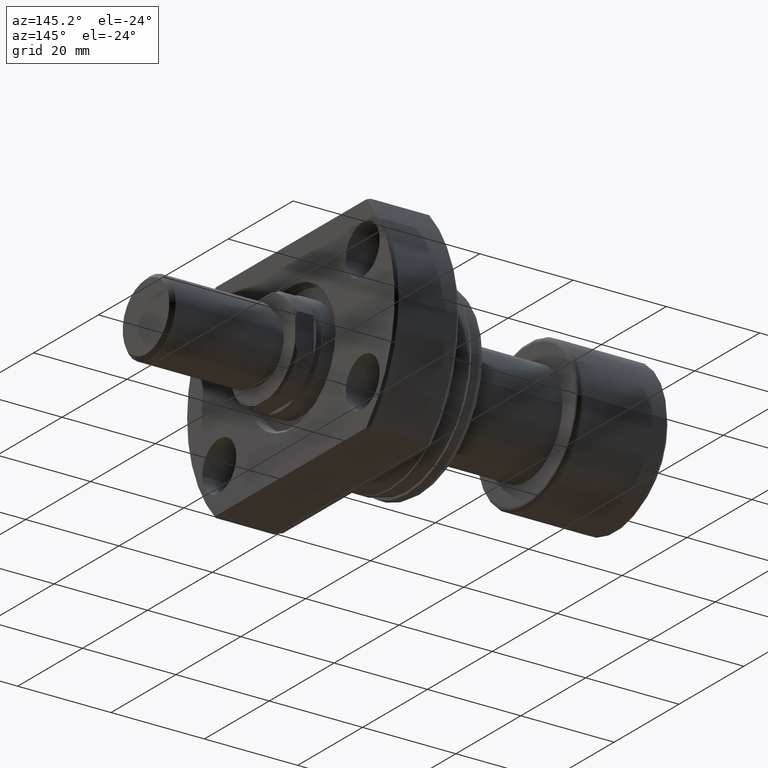
[diagram: clean part render]
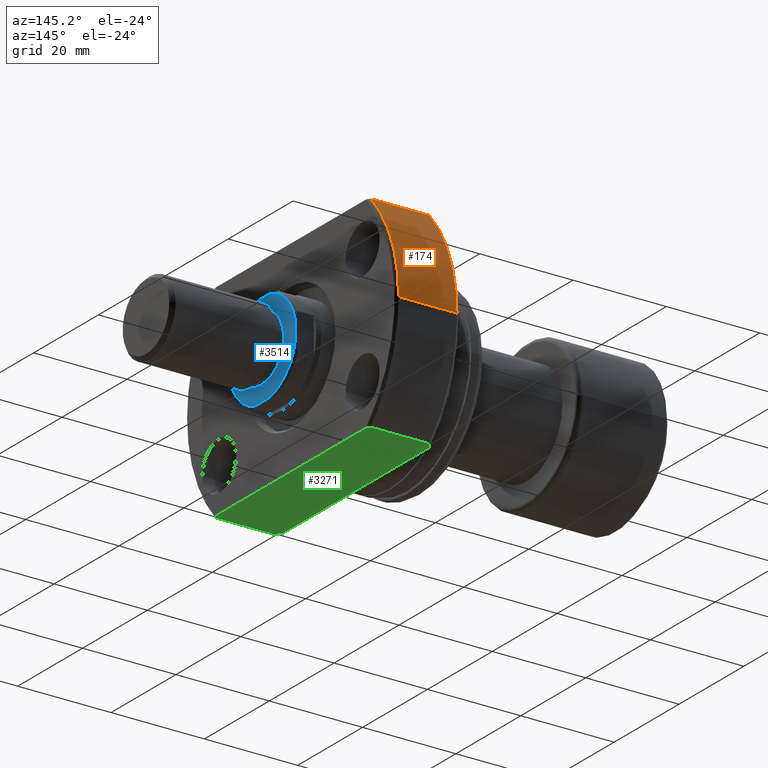
[diagram: same view with three faces highlighted in distinct colors, each labeled with its STEP entity id]
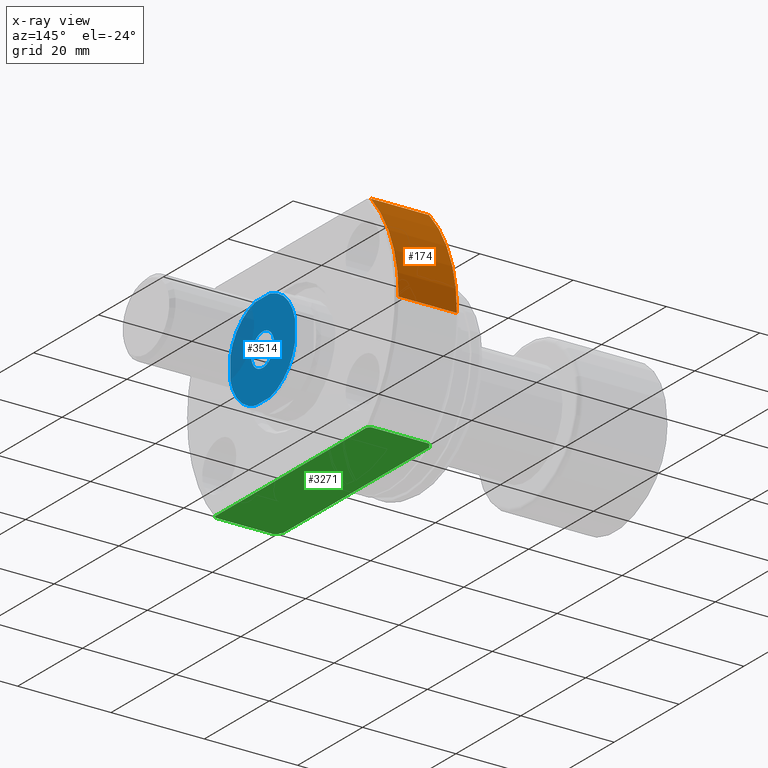
[diagram: x-ray of the same camera — body ghosted, the three highlighted faces saturated]
A machine part, auxiliary view with three faces highlighted in distinct colors.
The next image is the same camera in x-ray (body ghosted, the three faces saturated) — at least one of them is partly hidden behind the body in this view.
Their STEP definitions:

[orange] entity #174 — the highlighted cylindrical surface (partial cylindrical patch) has radius 32.5 mm, axis along (1, 0, 0).
#11 = VERTEX_POINT ( 'NONE', #2381 ) ;
#64 = EDGE_CURVE ( 'NONE', #11, #302, #3046, .T. ) ;
#162 = DIRECTION ( 'NONE',  ( 1.000000000000000000, 1.335978326342566810E-17, -0.000000000000000000 ) ) ;
#174 = ADVANCED_FACE ( 'NONE', ( #2740 ), #2186, .T. ) ;
#266 = ORIENTED_EDGE ( 'NONE', *, *, #64, .F. ) ;
#302 = VERTEX_POINT ( 'NONE', #1369 ) ;
#497 = CIRCLE ( 'NONE', #3351, 32.49999999999991473 ) ;
#707 = EDGE_CURVE ( 'NONE', #3194, #2089, #497, .T. ) ;
#713 = EDGE_LOOP ( 'NONE', ( #3176, #3032, #2932, #266 ) ) ;
#747 = CARTESIAN_POINT ( 'NONE',  ( 14.49999999999999289, 23.92174742781164198, 22.00000000000000000 ) ) ;
#792 = AXIS2_PLACEMENT_3D ( 'NONE', #1569, #2724, #1012 ) ;
#863 = EDGE_CURVE ( 'NONE', #2089, #302, #2777, .T. ) ;
#982 = VECTOR ( 'NONE', #3369, 1000.000000000000000 ) ;
#1012 = DIRECTION ( 'NONE',  ( 0.000000000000000000, 1.000000000000000000, 0.000000000000000000 ) ) ;
#1278 = VECTOR ( 'NONE', #3541, 1000.000000000000000 ) ;
#1298 = CARTESIAN_POINT ( 'NONE',  ( 14.49999999999999289, 32.49999999999991473, 0.000000000000000000 ) ) ;
#1308 = DIRECTION ( 'NONE',  ( 0.000000000000000000, 1.000000000000000000, 0.000000000000000000 ) ) ;
#1369 = CARTESIAN_POINT ( 'NONE',  ( 27.00000000000007105, 23.92174742781127961, 22.00000000000000000 ) ) ;
#1541 = DIRECTION ( 'NONE',  ( 1.000000000000000000, 1.335978326342566810E-17, -0.000000000000000000 ) ) ;
#1569 = CARTESIAN_POINT ( 'NONE',  ( 27.50000000000000355, 3.673940397442059375E-16, 0.000000000000000000 ) ) ;
#1763 = CARTESIAN_POINT ( 'NONE',  ( 27.00000000000008527, 3.607141481124941789E-16, 0.000000000000000000 ) ) ;
#1831 = LINE ( 'NONE', #2966, #1278 ) ;
#2028 = EDGE_CURVE ( 'NONE', #3194, #11, #1831, .T. ) ;
#2089 = VERTEX_POINT ( 'NONE', #747 ) ;
#2160 = AXIS2_PLACEMENT_3D ( 'NONE', #1763, #1541, #2881 ) ;
#2186 = CYLINDRICAL_SURFACE ( 'NONE', #792, 32.49999999999991473 ) ;
#2381 = CARTESIAN_POINT ( 'NONE',  ( 27.00000000000008527, 32.49999999999991473, 0.000000000000000000 ) ) ;
#2724 = DIRECTION ( 'NONE',  ( 1.000000000000000000, 1.335978326342566810E-17, -0.000000000000000000 ) ) ;
#2740 = FACE_OUTER_BOUND ( 'NONE', #713, .T. ) ;
#2777 = LINE ( 'NONE', #3630, #982 ) ;
#2881 = DIRECTION ( 'NONE',  ( 0.000000000000000000, 1.000000000000000000, 0.000000000000000000 ) ) ;
#2932 = ORIENTED_EDGE ( 'NONE', *, *, #863, .T. ) ;
#2966 = CARTESIAN_POINT ( 'NONE',  ( 27.50000000000000355, 32.49999999999991473, 0.000000000000000000 ) ) ;
#3032 = ORIENTED_EDGE ( 'NONE', *, *, #707, .T. ) ;
#3046 = CIRCLE ( 'NONE', #2160, 32.49999999999991473 ) ;
#3176 = ORIENTED_EDGE ( 'NONE', *, *, #2028, .F. ) ;
#3194 = VERTEX_POINT ( 'NONE', #1298 ) ;
#3245 = CARTESIAN_POINT ( 'NONE',  ( 14.49999999999999289, 1.937168573196720858E-16, 0.000000000000000000 ) ) ;
#3351 = AXIS2_PLACEMENT_3D ( 'NONE', #3245, #162, #1308 ) ;
#3369 = DIRECTION ( 'NONE',  ( 1.000000000000000000, -2.886466111666351885E-14, -0.000000000000000000 ) ) ;
#3541 = DIRECTION ( 'NONE',  ( 1.000000000000000000, 1.335978326342566810E-17, -0.000000000000000000 ) ) ;
#3630 = CARTESIAN_POINT ( 'NONE',  ( -2.428612866367529932E-13, 23.92174742781206120, 22.00000000000000000 ) ) ;

[blue] entity #3514 — the highlighted planar face has unit normal (-1, -0, 0).
#130 = DIRECTION ( 'NONE',  ( 1.000000000000000000, 1.069542322069065801E-17, 0.000000000000000000 ) ) ;
#136 = CIRCLE ( 'NONE', #2225, 10.24999999999998046 ) ;
#213 = CARTESIAN_POINT ( 'NONE',  ( 77.00000000000004263, 2.249999999999904521, -9.999999999999996447 ) ) ;
#349 = CARTESIAN_POINT ( 'NONE',  ( 76.99999999999995737, -2.249999999999908518, -10.00000000000000000 ) ) ;
#392 = AXIS2_PLACEMENT_3D ( 'NONE', #3281, #130, #2984 ) ;
#419 = CARTESIAN_POINT ( 'NONE',  ( 77.00000000000000000, 8.235475879931805356E-16, 0.000000000000000000 ) ) ;
#430 = DIRECTION ( 'NONE',  ( -1.000000000000000000, -1.069542322069065801E-17, 0.000000000000000000 ) ) ;
#467 = DIRECTION ( 'NONE',  ( 0.000000000000000000, -1.000000000000000000, 0.000000000000000000 ) ) ;
#501 = AXIS2_PLACEMENT_3D ( 'NONE', #1880, #3018, #467 ) ;
#510 = DIRECTION ( 'NONE',  ( 0.000000000000000000, -1.000000000000000000, 0.000000000000000000 ) ) ;
#529 = LINE ( 'NONE', #763, #2590 ) ;
#553 = CARTESIAN_POINT ( 'NONE',  ( 77.00000000000000000, -10.00000000000127365, -2.249999999994244160 ) ) ;
#630 = ORIENTED_EDGE ( 'NONE', *, *, #3075, .T. ) ;
#634 = LINE ( 'NONE', #3122, #867 ) ;
#648 = VERTEX_POINT ( 'NONE', #1585 ) ;
#740 = LINE ( 'NONE', #2086, #2997 ) ;
#743 = CIRCLE ( 'NONE', #392, 10.24999999999997691 ) ;
#759 = DIRECTION ( 'NONE',  ( 0.000000000000000000, -1.000000000000000000, -8.881784197001252323E-16 ) ) ;
#763 = CARTESIAN_POINT ( 'NONE',  ( 76.99999999999982947, -10.00000000000127365, -3.944933459514880614 ) ) ;
#795 = CIRCLE ( 'NONE', #501, 3.500000000000250466 ) ;
#811 = AXIS2_PLACEMENT_3D ( 'NONE', #3575, #430, #1884 ) ;
#862 = ORIENTED_EDGE ( 'NONE', *, *, #2120, .T. ) ;
#867 = VECTOR ( 'NONE', #1713, 1000.000000000000000 ) ;
#1026 = ORIENTED_EDGE ( 'NONE', *, *, #2638, .T. ) ;
#1050 = EDGE_CURVE ( 'NONE', #648, #3377, #740, .T. ) ;
#1054 = DIRECTION ( 'NONE',  ( 1.000000000000000000, 1.069542322069065801E-17, 0.000000000000000000 ) ) ;
#1155 = DIRECTION ( 'NONE',  ( -1.758938135488420707E-14, -1.000000000000000000, -4.397345338721051373E-16 ) ) ;
#1224 = VECTOR ( 'NONE', #1155, 1000.000000000000000 ) ;
#1230 = AXIS2_PLACEMENT_3D ( 'NONE', #2466, #1054, #759 ) ;
#1240 = EDGE_CURVE ( 'NONE', #2170, #3373, #529, .T. ) ;
#1360 = DIRECTION ( 'NONE',  ( 0.000000000000000000, -6.596018008081577059E-16, 1.000000000000000000 ) ) ;
#1361 = CARTESIAN_POINT ( 'NONE',  ( 77.00000000000000000, 8.235475879931806342E-16, 0.000000000000000000 ) ) ;
#1367 = CARTESIAN_POINT ( 'NONE',  ( 77.00000000000000000, -3.500000000001648459, 4.286263797016192162E-16 ) ) ;
#1370 = CARTESIAN_POINT ( 'NONE',  ( 77.00000000000000000, 3.499999999998968825, 0.000000000000000000 ) ) ;
#1484 = CARTESIAN_POINT ( 'NONE',  ( 77.00000000000004263, 2.249999999999858780, 10.00000000000000000 ) ) ;
#1539 = CARTESIAN_POINT ( 'NONE',  ( 76.99999999999982947, -10.00000000000127720, 2.249999999994230393 ) ) ;
#1552 = ORIENTED_EDGE ( 'NONE', *, *, #1050, .F. ) ;
#1567 = VERTEX_POINT ( 'NONE', #3619 ) ;
#1585 = CARTESIAN_POINT ( 'NONE',  ( 76.99999999999995737, -2.249999999999906741, 10.00000000000000000 ) ) ;
#1703 = CARTESIAN_POINT ( 'NONE',  ( 77.00000000000000000, -1.276093895609017638E-12, 0.000000000000000000 ) ) ;
#1713 = DIRECTION ( 'NONE',  ( 0.000000000000000000, 2.198672669360525686E-16, -1.000000000000000000 ) ) ;
#1793 = VERTEX_POINT ( 'NONE', #1370 ) ;
#1873 = DIRECTION ( 'NONE',  ( 1.758938135488420707E-14, 1.000000000000000000, 2.198672669360525686E-16 ) ) ;
#1880 = CARTESIAN_POINT ( 'NONE',  ( 77.00000000000000000, -1.276093895609017638E-12, 0.000000000000000000 ) ) ;
#1884 = DIRECTION ( 'NONE',  ( 1.069542322069065801E-17, -1.000000000000000000, 0.000000000000000000 ) ) ;
#1890 = DIRECTION ( 'NONE',  ( 1.000000000000000000, 1.069542322069065801E-17, 0.000000000000000000 ) ) ;
#1965 = ORIENTED_EDGE ( 'NONE', *, *, #3047, .T. ) ;
#2086 = CARTESIAN_POINT ( 'NONE',  ( 76.99999999999992895, -3.944933459516154706, 9.999999999999998224 ) ) ;
#2095 = ORIENTED_EDGE ( 'NONE', *, *, #3292, .T. ) ;
#2120 = EDGE_CURVE ( 'NONE', #1793, #3673, #795, .T. ) ;
#2170 = VERTEX_POINT ( 'NONE', #553 ) ;
#2225 = AXIS2_PLACEMENT_3D ( 'NONE', #1361, #3398, #2544 ) ;
#2271 = LINE ( 'NONE', #3631, #1224 ) ;
#2274 = EDGE_CURVE ( 'NONE', #3129, #3378, #2271, .T. ) ;
#2443 = FACE_BOUND ( 'NONE', #2467, .T. ) ;
#2466 = CARTESIAN_POINT ( 'NONE',  ( 77.00000000000000000, 8.235475879931806342E-16, 0.000000000000000000 ) ) ;
#2467 = EDGE_LOOP ( 'NONE', ( #862, #2095 ) ) ;
#2544 = DIRECTION ( 'NONE',  ( 0.000000000000000000, -1.000000000000000000, 0.000000000000000000 ) ) ;
#2586 = CARTESIAN_POINT ( 'NONE',  ( 77.00000000000000000, 9.999999999998721023, 2.250000000005536016 ) ) ;
#2590 = VECTOR ( 'NONE', #1360, 1000.000000000000000 ) ;
#2595 = CIRCLE ( 'NONE', #3066, 3.500000000000250466 ) ;
#2638 = EDGE_CURVE ( 'NONE', #2170, #3378, #136, .T. ) ;
#2704 = EDGE_LOOP ( 'NONE', ( #3499, #3290, #3430, #1965, #1552, #630, #3380, #1026 ) ) ;
#2830 = CIRCLE ( 'NONE', #1230, 10.24999999999996803 ) ;
#2950 = AXIS2_PLACEMENT_3D ( 'NONE', #419, #1890, #3604 ) ;
#2964 = VERTEX_POINT ( 'NONE', #2586 ) ;
#2979 = EDGE_CURVE ( 'NONE', #2964, #1567, #634, .T. ) ;
#2984 = DIRECTION ( 'NONE',  ( 0.000000000000000000, -1.000000000000000000, 8.881784197001252323E-16 ) ) ;
#2997 = VECTOR ( 'NONE', #1873, 1000.000000000000000 ) ;
#3018 = DIRECTION ( 'NONE',  ( -1.000000000000000000, -1.069542322069065801E-17, -0.000000000000000000 ) ) ;
#3043 = EDGE_CURVE ( 'NONE', #3129, #1567, #743, .T. ) ;
#3047 = EDGE_CURVE ( 'NONE', #2964, #3377, #2830, .T. ) ;
#3066 = AXIS2_PLACEMENT_3D ( 'NONE', #1703, #3412, #510 ) ;
#3075 = EDGE_CURVE ( 'NONE', #648, #3373, #3602, .T. ) ;
#3122 = CARTESIAN_POINT ( 'NONE',  ( 77.00000000000017053, 9.999999999998721023, 3.944933459514878837 ) ) ;
#3129 = VERTEX_POINT ( 'NONE', #213 ) ;
#3281 = CARTESIAN_POINT ( 'NONE',  ( 77.00000000000000000, 8.235475879931807328E-16, 0.000000000000000000 ) ) ;
#3290 = ORIENTED_EDGE ( 'NONE', *, *, #3043, .T. ) ;
#3292 = EDGE_CURVE ( 'NONE', #3673, #1793, #2595, .T. ) ;
#3373 = VERTEX_POINT ( 'NONE', #1539 ) ;
#3377 = VERTEX_POINT ( 'NONE', #1484 ) ;
#3378 = VERTEX_POINT ( 'NONE', #349 ) ;
#3380 = ORIENTED_EDGE ( 'NONE', *, *, #1240, .F. ) ;
#3398 = DIRECTION ( 'NONE',  ( 1.000000000000000000, 1.069542322069065801E-17, 0.000000000000000000 ) ) ;
#3412 = DIRECTION ( 'NONE',  ( -1.000000000000000000, -1.069542322069065801E-17, -0.000000000000000000 ) ) ;
#3430 = ORIENTED_EDGE ( 'NONE', *, *, #2979, .F. ) ;
#3499 = ORIENTED_EDGE ( 'NONE', *, *, #2274, .F. ) ;
#3514 = ADVANCED_FACE ( 'NONE', ( #2443, #3543 ), #3560, .F. ) ;
#3543 = FACE_OUTER_BOUND ( 'NONE', #2704, .T. ) ;
#3560 = PLANE ( 'NONE',  #811 ) ;
#3575 = CARTESIAN_POINT ( 'NONE',  ( 77.00000000000000000, -6.148574185495778962E-34, 0.000000000000000000 ) ) ;
#3602 = CIRCLE ( 'NONE', #2950, 10.24999999999998046 ) ;
#3604 = DIRECTION ( 'NONE',  ( 0.000000000000000000, -1.000000000000000000, 0.000000000000000000 ) ) ;
#3619 = CARTESIAN_POINT ( 'NONE',  ( 77.00000000000017053, 9.999999999998722799, -2.250000000005570655 ) ) ;
#3631 = CARTESIAN_POINT ( 'NONE',  ( 77.00000000000007105, 3.944933459513603857, -9.999999999999996447 ) ) ;
#3673 = VERTEX_POINT ( 'NONE', #1367 ) ;

[green] entity #3271 — the highlighted planar face has unit normal (0, 0, 1).
#258 = CARTESIAN_POINT ( 'NONE',  ( 27.50000000000000355, -23.23790007724450035, -22.00000000000000355 ) ) ;
#348 = EDGE_CURVE ( 'NONE', #1202, #1712, #2554, .T. ) ;
#437 = VERTEX_POINT ( 'NONE', #2876 ) ;
#449 = CARTESIAN_POINT ( 'NONE',  ( 27.50000000000000355, 23.23790007724450035, -22.00000000000000355 ) ) ;
#549 = EDGE_LOOP ( 'NONE', ( #1704, #3474, #3081, #865, #2283, #1856, #585, #1891 ) ) ;
#585 = ORIENTED_EDGE ( 'NONE', *, *, #3636, .F. ) ;
#660 = VERTEX_POINT ( 'NONE', #1043 ) ;
#704 = EDGE_CURVE ( 'NONE', #437, #1712, #2200, .T. ) ;
#731 = B_SPLINE_CURVE_WITH_KNOTS ( 'NONE', 3,
 ( #2506, #2790, #3325, #1894 ),
 .UNSPECIFIED., .F., .F.,
 ( 4, 4 ),
 ( 0.03779752499755564821, 0.03950166028446427946 ),
 .UNSPECIFIED. ) ;
#825 = FACE_OUTER_BOUND ( 'NONE', #549, .T. ) ;
#865 = ORIENTED_EDGE ( 'NONE', *, *, #1044, .F. ) ;
#949 = B_SPLINE_CURVE_WITH_KNOTS ( 'NONE', 3,
 ( #3092, #2572, #3375, #1995 ),
 .UNSPECIFIED., .F., .F.,
 ( 4, 4 ),
 ( 0.08934887722955493772, 0.09106053602301761307 ),
 .UNSPECIFIED. ) ;
#952 = CARTESIAN_POINT ( 'NONE',  ( 27.00000000000007105, -23.92174742781127605, -22.00000000000000355 ) ) ;
#961 = LINE ( 'NONE', #2324, #1996 ) ;
#986 = CARTESIAN_POINT ( 'NONE',  ( 27.16738888422669262, -23.69433349186108018, -22.00000000000000355 ) ) ;
#1043 = CARTESIAN_POINT ( 'NONE',  ( 14.49999999999999289, -23.92174742781091368, -22.00000000000000355 ) ) ;
#1044 = EDGE_CURVE ( 'NONE', #2851, #3677, #3133, .T. ) ;
#1071 = VERTEX_POINT ( 'NONE', #2960 ) ;
#1139 = DIRECTION ( 'NONE',  ( 1.000000000000000000, -2.886466111666351885E-14, -0.000000000000000000 ) ) ;
#1202 = VERTEX_POINT ( 'NONE', #2805 ) ;
#1234 = EDGE_CURVE ( 'NONE', #1202, #2132, #731, .T. ) ;
#1274 = LINE ( 'NONE', #2722, #1876 ) ;
#1597 = CARTESIAN_POINT ( 'NONE',  ( 27.33407032320117125, -23.46639532164750364, -22.00000000000000355 ) ) ;
#1678 = EDGE_CURVE ( 'NONE', #1071, #660, #949, .T. ) ;
#1700 = CARTESIAN_POINT ( 'NONE',  ( 27.00000000000007105, 23.92174742781127961, -22.00000000000000000 ) ) ;
#1704 = ORIENTED_EDGE ( 'NONE', *, *, #348, .T. ) ;
#1712 = VERTEX_POINT ( 'NONE', #1700 ) ;
#1843 = CARTESIAN_POINT ( 'NONE',  ( 27.16744843440999446, 23.69425258719626726, -22.00000000000000355 ) ) ;
#1856 = ORIENTED_EDGE ( 'NONE', *, *, #1678, .F. ) ;
#1876 = VECTOR ( 'NONE', #2458, 1000.000000000000000 ) ;
#1891 = ORIENTED_EDGE ( 'NONE', *, *, #1234, .F. ) ;
#1894 = CARTESIAN_POINT ( 'NONE',  ( 13.50000000000000178, 22.54440063519089676, -22.00000000000000355 ) ) ;
#1995 = CARTESIAN_POINT ( 'NONE',  ( 14.49999999999999289, -23.92174742781091368, -22.00000000000000355 ) ) ;
#1996 = VECTOR ( 'NONE', #2951, 1000.000000000000000 ) ;
#2122 = VECTOR ( 'NONE', #2496, 1000.000000000000000 ) ;
#2132 = VERTEX_POINT ( 'NONE', #3686 ) ;
#2200 = B_SPLINE_CURVE_WITH_KNOTS ( 'NONE', 3,
 ( #449, #2426, #1843, #3260 ),
 .UNSPECIFIED., .F., .F.,
 ( 4, 4 ),
 ( 0.09020251661949907351, 0.09105413011805363332 ),
 .UNSPECIFIED. ) ;
#2283 = ORIENTED_EDGE ( 'NONE', *, *, #3669, .F. ) ;
#2324 = CARTESIAN_POINT ( 'NONE',  ( 27.50000000000000355, -32.00000000000000000, -22.00000000000000355 ) ) ;
#2426 = CARTESIAN_POINT ( 'NONE',  ( 27.33413051841648311, 23.46631242917946025, -22.00000000000000355 ) ) ;
#2458 = DIRECTION ( 'NONE',  ( 1.335978326342566810E-17, -1.000000000000000000, 0.000000000000000000 ) ) ;
#2496 = DIRECTION ( 'NONE',  ( 1.000000000000000000, -2.886466111666351885E-14, -0.000000000000000000 ) ) ;
#2502 = DIRECTION ( 'NONE',  ( 0.000000000000000000, 0.000000000000000000, 1.000000000000000000 ) ) ;
#2506 = CARTESIAN_POINT ( 'NONE',  ( 14.49999999999999289, 23.92174742781164198, -22.00000000000000000 ) ) ;
#2554 = LINE ( 'NONE', #3690, #2988 ) ;
#2572 = CARTESIAN_POINT ( 'NONE',  ( 13.82998096711740033, -23.00546414414808538, -22.00000000000000355 ) ) ;
#2722 = CARTESIAN_POINT ( 'NONE',  ( 13.50000000000000178, -19.99999999999999645, -22.00000000000000355 ) ) ;
#2787 = PLANE ( 'NONE',  #3008 ) ;
#2790 = CARTESIAN_POINT ( 'NONE',  ( 14.16368991444089964, 23.46483775540317751, -22.00000000000000355 ) ) ;
#2797 = LINE ( 'NONE', #3616, #2122 ) ;
#2805 = CARTESIAN_POINT ( 'NONE',  ( 14.49999999999999289, 23.92174742781164198, -22.00000000000000000 ) ) ;
#2851 = VERTEX_POINT ( 'NONE', #3399 ) ;
#2876 = CARTESIAN_POINT ( 'NONE',  ( 27.50000000000000355, 23.23790007724450035, -22.00000000000000355 ) ) ;
#2951 = DIRECTION ( 'NONE',  ( -1.335978326342566810E-17, 1.000000000000000000, -0.000000000000000000 ) ) ;
#2960 = CARTESIAN_POINT ( 'NONE',  ( 13.50000000000001421, -22.54440063519093940, -22.00000000000000355 ) ) ;
#2988 = VECTOR ( 'NONE', #1139, 1000.000000000000000 ) ;
#3008 = AXIS2_PLACEMENT_3D ( 'NONE', #3676, #2502, #3079 ) ;
#3079 = DIRECTION ( 'NONE',  ( 1.000000000000000000, 0.000000000000000000, -0.000000000000000000 ) ) ;
#3081 = ORIENTED_EDGE ( 'NONE', *, *, #3479, .F. ) ;
#3092 = CARTESIAN_POINT ( 'NONE',  ( 13.50000000000001421, -22.54440063519093940, -22.00000000000000355 ) ) ;
#3133 = B_SPLINE_CURVE_WITH_KNOTS ( 'NONE', 3,
 ( #952, #986, #1597, #3285 ),
 .UNSPECIFIED., .F., .F.,
 ( 4, 4 ),
 ( 0.03779112510166890426, 0.03863931077161743971 ),
 .UNSPECIFIED. ) ;
#3260 = CARTESIAN_POINT ( 'NONE',  ( 27.00000000000007105, 23.92174742781127961, -22.00000000000000000 ) ) ;
#3271 = ADVANCED_FACE ( 'NONE', ( #825 ), #2787, .F. ) ;
#3285 = CARTESIAN_POINT ( 'NONE',  ( 27.50000000000000355, -23.23790007724450035, -22.00000000000000355 ) ) ;
#3325 = CARTESIAN_POINT ( 'NONE',  ( 13.83023180395318619, 23.00581462409453692, -22.00000000000000355 ) ) ;
#3375 = CARTESIAN_POINT ( 'NONE',  ( 14.16344437228347886, -23.46450416271139261, -22.00000000000000355 ) ) ;
#3399 = CARTESIAN_POINT ( 'NONE',  ( 27.00000000000007105, -23.92174742781127605, -22.00000000000000355 ) ) ;
#3474 = ORIENTED_EDGE ( 'NONE', *, *, #704, .F. ) ;
#3479 = EDGE_CURVE ( 'NONE', #3677, #437, #961, .T. ) ;
#3616 = CARTESIAN_POINT ( 'NONE',  ( -1.623701173514291440E-12, -23.92174742781049446, -22.00000000000000355 ) ) ;
#3636 = EDGE_CURVE ( 'NONE', #2132, #1071, #1274, .T. ) ;
#3669 = EDGE_CURVE ( 'NONE', #660, #2851, #2797, .T. ) ;
#3676 = CARTESIAN_POINT ( 'NONE',  ( -2.428612866367529932E-13, 23.92174742781206831, -22.00000000000000355 ) ) ;
#3677 = VERTEX_POINT ( 'NONE', #258 ) ;
#3686 = CARTESIAN_POINT ( 'NONE',  ( 13.50000000000000178, 22.54440063519089676, -22.00000000000000355 ) ) ;
#3690 = CARTESIAN_POINT ( 'NONE',  ( -2.428612866367529932E-13, 23.92174742781206120, -22.00000000000000000 ) ) ;